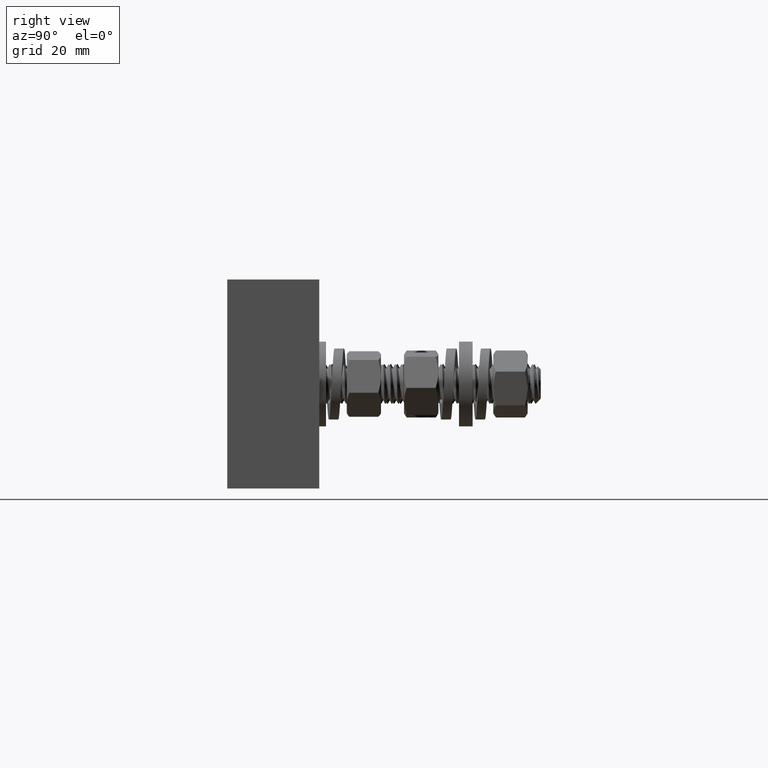
[diagram: clean part render]
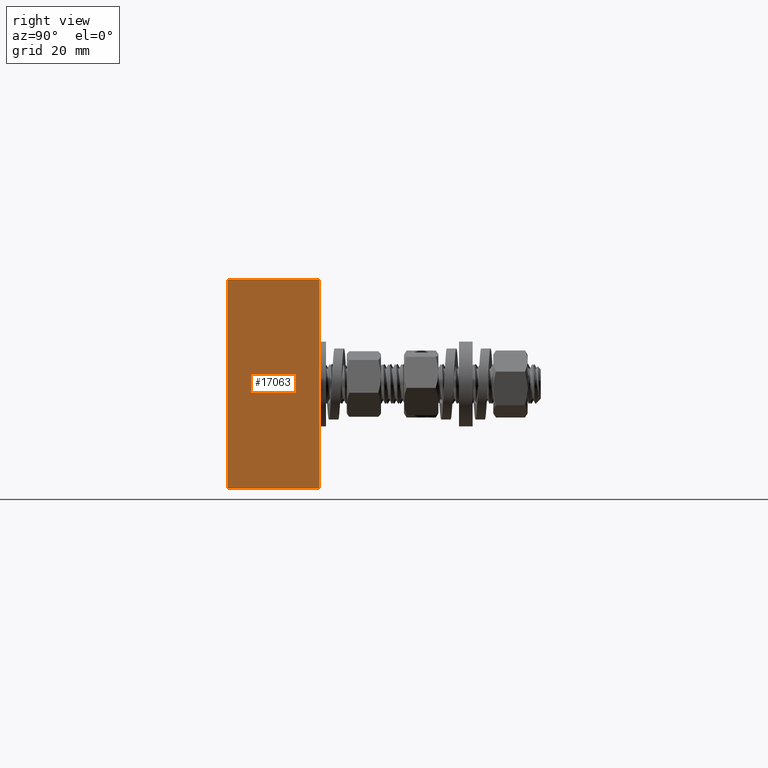
[diagram: same view with one face highlighted and labeled with its STEP entity id]
A machine part, right view. The second image highlights one B-rep face of the part: STEP entity #17063.
In plain terms, the highlighted planar face has unit normal (-1, 0, 0).
Its self-contained STEP definition (entity closure, byte-faithful):
#4162 = PLANE ( 'NONE',  #42523 ) ;
#4243 = DIRECTION ( 'NONE',  ( 0.0000000000000000000, 0.0000000000000000000, 1.000000000000000000 ) ) ;
#4251 = CARTESIAN_POINT ( 'NONE',  ( 3.000000000000001300, -0.4400000000000000000, 1.000000000000000000 ) ) ;
#4267 = DIRECTION ( 'NONE',  ( -1.000000000000000000, 0.0000000000000000000, 0.0000000000000000000 ) ) ;
#9785 = ORIENTED_EDGE ( 'NONE', *, *, #24831, .T. ) ;
#9787 = ORIENTED_EDGE ( 'NONE', *, *, #24832, .F. ) ;
#9837 = ORIENTED_EDGE ( 'NONE', *, *, #24833, .F. ) ;
#9878 = ORIENTED_EDGE ( 'NONE', *, *, #24834, .T. ) ;
#10051 = EDGE_LOOP ( 'NONE', ( #9785, #9787, #9837, #9878 ) ) ;
#17063 = ADVANCED_FACE ( 'NONE', ( #28418 ), #4162, .F. ) ;
#20262 = CARTESIAN_POINT ( 'NONE',  ( 3.000000000000001300, 0.4400000000000000000, 1.000000000000000000 ) ) ;
#20290 = CARTESIAN_POINT ( 'NONE',  ( 3.000000000000001300, -0.4400000000000000000, -1.000000000000000000 ) ) ;
#20356 = CARTESIAN_POINT ( 'NONE',  ( 3.000000000000001300, -0.4400000000000000000, 1.000000000000000000 ) ) ;
#20521 = CARTESIAN_POINT ( 'NONE',  ( 3.000000000000001300, 0.4400000000000000000, -1.000000000000000000 ) ) ;
#24831 = EDGE_CURVE ( 'NONE', #44079, #44290, #46434, .T. ) ;
#24832 = EDGE_CURVE ( 'NONE', #44061, #44290, #46431, .T. ) ;
#24833 = EDGE_CURVE ( 'NONE', #44145, #44061, #46436, .T. ) ;
#24834 = EDGE_CURVE ( 'NONE', #44145, #44079, #46440, .T. ) ;
#28418 = FACE_OUTER_BOUND ( 'NONE', #10051, .T. ) ;
#42523 = AXIS2_PLACEMENT_3D ( 'NONE', #4251, #4267, #4243 ) ;
#44061 = VERTEX_POINT ( 'NONE', #20262 ) ;
#44079 = VERTEX_POINT ( 'NONE', #20290 ) ;
#44145 = VERTEX_POINT ( 'NONE', #20356 ) ;
#44290 = VERTEX_POINT ( 'NONE', #20521 ) ;
#45435 = CARTESIAN_POINT ( 'NONE',  ( 3.000000000000001300, -0.4400000000000000000, 1.000000000000000000 ) ) ;
#45436 = CARTESIAN_POINT ( 'NONE',  ( 3.000000000000001300, 0.4400000000000000000, 1.000000000000000000 ) ) ;
#45440 = CARTESIAN_POINT ( 'NONE',  ( 3.000000000000001300, -0.4400000000000000000, -1.000000000000000000 ) ) ;
#45441 = DIRECTION ( 'NONE',  ( 0.0000000000000000000, 1.000000000000000000, 0.0000000000000000000 ) ) ;
#45442 = DIRECTION ( 'NONE',  ( -0.0000000000000000000, -0.0000000000000000000, -1.000000000000000000 ) ) ;
#45443 = DIRECTION ( 'NONE',  ( 0.0000000000000000000, 1.000000000000000000, 0.0000000000000000000 ) ) ;
#45444 = CARTESIAN_POINT ( 'NONE',  ( 3.000000000000001300, -0.4400000000000000000, 1.000000000000000000 ) ) ;
#45445 = DIRECTION ( 'NONE',  ( -0.0000000000000000000, -0.0000000000000000000, -1.000000000000000000 ) ) ;
#46431 = LINE ( 'NONE', #45436, #46439 ) ;
#46434 = LINE ( 'NONE', #45440, #46437 ) ;
#46436 = LINE ( 'NONE', #45435, #46441 ) ;
#46437 = VECTOR ( 'NONE', #45441, 39.37007874015748100 ) ;
#46439 = VECTOR ( 'NONE', #45442, 39.37007874015748100 ) ;
#46440 = LINE ( 'NONE', #45444, #46443 ) ;
#46441 = VECTOR ( 'NONE', #45443, 39.37007874015748100 ) ;
#46443 = VECTOR ( 'NONE', #45445, 39.37007874015748100 ) ;